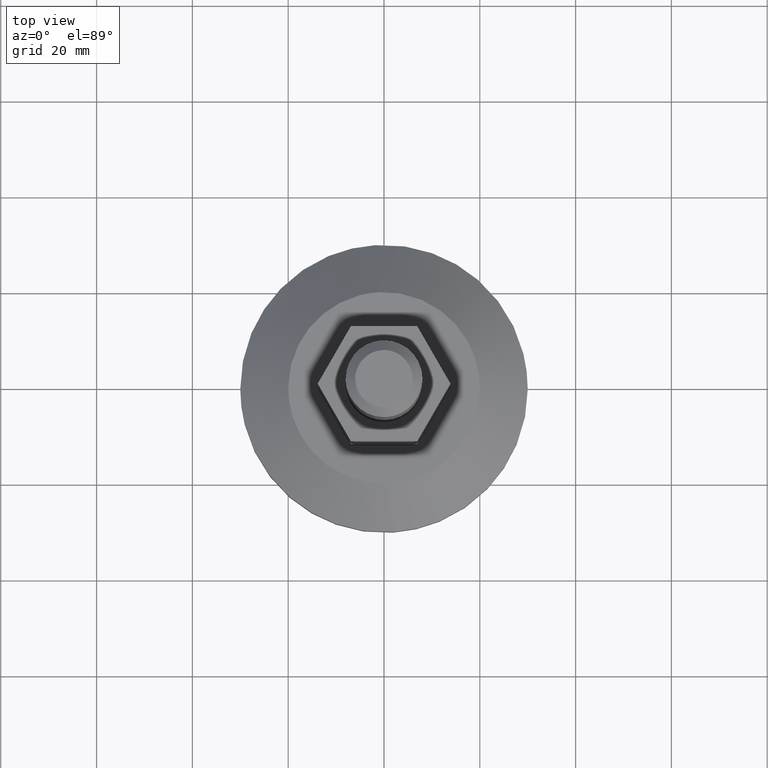
[diagram: clean part render]
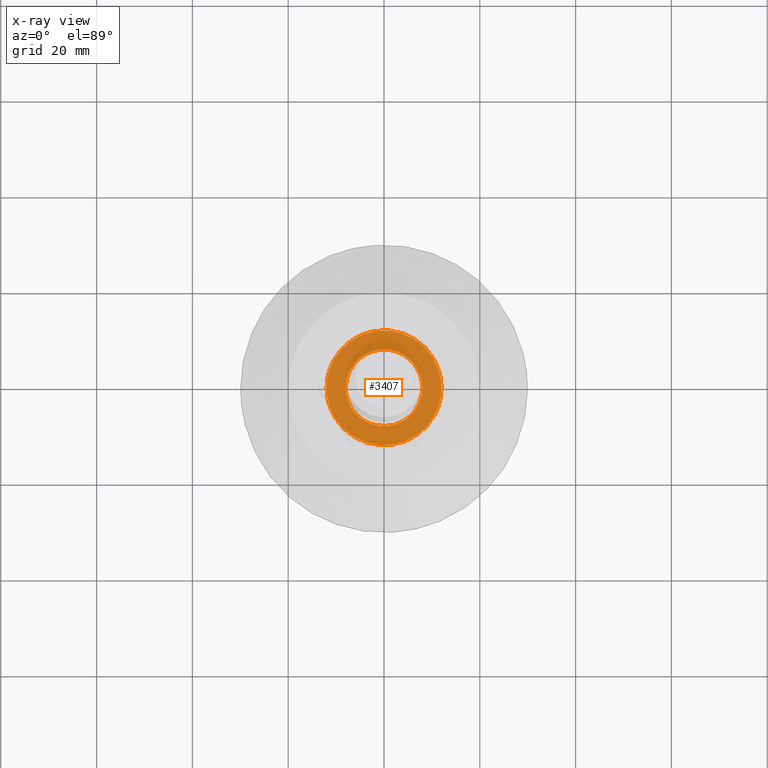
[diagram: x-ray — body ghosted, one internal face saturated and labeled with its STEP entity id]
A machine part, top view, then the same camera in x-ray: the body is ghosted and one INTERNAL B-rep face — a face not visible from any outside direction — is saturated and labeled: STEP entity #3407.
In plain terms, the highlighted face is a freeform B-spline surface patch.
Its self-contained STEP definition (entity closure, byte-faithful):
#3145=CARTESIAN_POINT('',(-11.993593654587141,0.0,17.0));
#3146=VERTEX_POINT('',#3145);
#3147=CARTESIAN_POINT('',(-10.636228768080279,5.542285299832208,17.000000000007748));
#3148=VERTEX_POINT('',#3147);
#3149=CARTESIAN_POINT('',(-11.993593654587141,0.0,17.0));
#3150=CARTESIAN_POINT('',(-11.993593654593083,2.937359231658289,17.000000000003880));
#3151=CARTESIAN_POINT('',(-10.636228768080276,5.542285299832209,17.000000000007748));
#3159=(BOUNDED_CURVE()B_SPLINE_CURVE(2,(#3149,#3150,#3151),.UNSPECIFIED.,.F.,.U.)B_SPLINE_CURVE_WITH_KNOTS((3,3),(0.500000000000000,0.578613981802271),.UNSPECIFIED.)CURVE()GEOMETRIC_REPRESENTATION_ITEM()RATIONAL_B_SPLINE_CURVE((1.0,0.907897991304763,0.873720027693685))REPRESENTATION_ITEM(''));
#3160=EDGE_CURVE('',#3146,#3148,#3159,.T.);
#3162=CARTESIAN_POINT('',(10.636228768080279,-5.542285299832206,17.000000000007748));
#3163=VERTEX_POINT('',#3162);
#3164=CARTESIAN_POINT('',(10.636228768080279,-5.542285299832206,17.000000000007748));
#3165=CARTESIAN_POINT('',(10.194722511241030,-6.390105943887753,17.000000000007699));
#3166=CARTESIAN_POINT('',(9.272762644634474,-7.737226629220758,17.000000000007400));
#3167=CARTESIAN_POINT('',(7.473253849906319,-9.475886156291548,17.000000000007109));
#3168=CARTESIAN_POINT('',(5.755085969863216,-10.591453163964800,17.000000000006469));
#3169=CARTESIAN_POINT('',(3.879149589840315,-11.394034289699910,17.000000000006210));
#3170=CARTESIAN_POINT('',(2.065029211498472,-11.874375301179089,17.000000000005372));
#3171=CARTESIAN_POINT('',(0.277842485635818,-12.030686909236939,17.000000000004949));
#3172=CARTESIAN_POINT('',(-1.509106902916755,-11.935791487184860,17.000000000004320));
#3173=CARTESIAN_POINT('',(-3.147789623515974,-11.623690810468119,17.000000000003780));
#3174=CARTESIAN_POINT('',(-4.677611438959060,-11.075354348443350,17.000000000003240));
#3175=CARTESIAN_POINT('',(-6.389475945877666,-10.219539917387330,17.000000000002618));
#3176=CARTESIAN_POINT('',(-7.945230817021175,-9.085199359660708,17.000000000002021));
#3177=CARTESIAN_POINT('',(-9.334574819232081,-7.588882110131880,17.000000000001471));
#3178=CARTESIAN_POINT('',(-10.317310250948610,-6.192820777633813,17.000000000000981));
#3179=CARTESIAN_POINT('',(-11.019908264660931,-4.819758143995396,17.000000000000679));
#3180=CARTESIAN_POINT('',(-11.761937881596900,-2.742665517208116,17.000000000000529));
#3181=CARTESIAN_POINT('',(-11.994117133447210,-1.163723419241393,17.000000000000249));
#3182=CARTESIAN_POINT('',(-11.993593654587141,0.0,17.0));
#3183=B_SPLINE_CURVE_WITH_KNOTS('',3,(#3164,#3165,#3166,#3167,#3168,#3169,#3170,#3171,#3172,#3173,#3174,#3175,#3176,#3177,#3178,#3179,#3180,#3181,#3182),.UNSPECIFIED.,.F.,.U.,(4,1,1,1,1,1,1,1,1,1,1,1,1,1,1,1,4),(0.000000125357563,2.867617186952348,4.862495208319736,7.480744819523032,8.976932363072077,10.971774188875180,13.091259523285210,14.338034657543000,16.332921408204228,18.078444425954370,19.200555202019238,22.068177801914711,23.813685087827480,25.309863000270301,27.180065850782089,28.426859241106591,31.917814500812518),.UNSPECIFIED.);
#3184=EDGE_CURVE('',#3163,#3146,#3183,.T.);
#3221=CARTESIAN_POINT('',(11.993593654587141,0.0,17.0));
#3222=VERTEX_POINT('',#3221);
#3223=CARTESIAN_POINT('',(-10.636228768080279,5.542285299832208,17.000000000007748));
#3224=CARTESIAN_POINT('',(-10.271420289272180,6.242595311110907,17.000000000007692));
#3225=CARTESIAN_POINT('',(-9.379934617229800,7.605708570843317,17.000000000007571));
#3226=CARTESIAN_POINT('',(-7.760738625139015,9.236555621054350,17.000000000006949));
#3227=CARTESIAN_POINT('',(-6.248110989847127,10.275351582391901,17.000000000007010));
#3228=CARTESIAN_POINT('',(-4.807024617786528,11.020284975110449,17.000000000006111));
#3229=CARTESIAN_POINT('',(-3.206015797335124,11.618515195588410,17.000000000005869));
#3230=CARTESIAN_POINT('',(-1.237002490327198,11.989084313516100,17.000000000005620));
#3231=CARTESIAN_POINT('',(0.555280847702997,12.015009104085070,17.000000000004441));
#3232=CARTESIAN_POINT('',(2.332847045464026,11.808942624655790,17.000000000004139));
#3233=CARTESIAN_POINT('',(3.905633812236696,11.388917926212860,17.000000000003510));
#3234=CARTESIAN_POINT('',(5.584181077250881,10.655899190279330,17.000000000002888));
#3235=CARTESIAN_POINT('',(7.115326862333514,9.723861731951610,17.000000000002370));
#3236=CARTESIAN_POINT('',(8.409012368669863,8.604695383396367,17.000000000001819));
#3237=CARTESIAN_POINT('',(9.536965886224113,7.325027184929705,17.000000000001371));
#3238=CARTESIAN_POINT('',(10.569282040761170,5.808914944792065,17.000000000000931));
#3239=CARTESIAN_POINT('',(11.362573645324590,4.012410770089780,17.000000000000469));
#3240=CARTESIAN_POINT('',(11.876524413631790,1.994807695130304,17.000000000000298));
#3241=CARTESIAN_POINT('',(11.993686607032039,0.748069291947581,16.999999999999972));
#3242=CARTESIAN_POINT('',(11.993593654587141,0.0,17.0));
#3243=B_SPLINE_CURVE_WITH_KNOTS('',3,(#3223,#3224,#3225,#3226,#3227,#3228,#3229,#3230,#3231,#3232,#3233,#3234,#3235,#3236,#3237,#3238,#3239,#3240,#3241,#3242),.UNSPECIFIED.,.F.,.U.,(4,1,1,1,1,1,1,1,1,1,1,1,1,1,1,1,1,4),(0.000000125323801,2.368895523583472,4.862495208289968,6.857352172815158,7.854821382354423,9.725015972329533,11.969191168038410,13.839341692737980,15.086140898107489,17.330334692506430,18.701828911055760,20.572011093718341,22.691573970067040,23.813685087817792,25.683889541050799,28.177451364487389,29.673619461945830,31.917814500812650),.UNSPECIFIED.);
#3244=EDGE_CURVE('',#3148,#3222,#3243,.T.);
#3252=CARTESIAN_POINT('',(11.993593654587141,0.0,17.0));
#3253=CARTESIAN_POINT('',(11.993593654593083,-2.937359231658288,17.000000000003880));
#3254=CARTESIAN_POINT('',(10.636228768080276,-5.542285299832206,17.000000000007748));
#3262=(BOUNDED_CURVE()B_SPLINE_CURVE(2,(#3252,#3253,#3254),.UNSPECIFIED.,.F.,.U.)B_SPLINE_CURVE_WITH_KNOTS((3,3),(0.0,0.078613981802271),.UNSPECIFIED.)CURVE()GEOMETRIC_REPRESENTATION_ITEM()RATIONAL_B_SPLINE_CURVE((1.0,0.907897991304763,0.873720027693685))REPRESENTATION_ITEM(''));
#3263=EDGE_CURVE('',#3222,#3163,#3262,.T.);
#3287=CARTESIAN_POINT('',(0.488388316454029,-7.985078387364220,17.0));
#3288=VERTEX_POINT('',#3287);
#3294=CARTESIAN_POINT('',(-8.0,0.0,17.0));
#3295=VERTEX_POINT('',#3294);
#3296=CARTESIAN_POINT('',(0.488388316454031,-7.985078387364222,17.000000000000004));
#3297=CARTESIAN_POINT('',(0.244422106476545,-8.0,17.0));
#3298=CARTESIAN_POINT('',(0.0,-8.0,17.0));
#3299=CARTESIAN_POINT('',(-8.0,-8.0,17.000000000000004));
#3300=CARTESIAN_POINT('',(-8.0,0.0,17.0));
#3308=(BOUNDED_CURVE()B_SPLINE_CURVE(2,(#3296,#3297,#3298,#3299,#3300),.UNSPECIFIED.,.F.,.U.)B_SPLINE_CURVE_WITH_KNOTS((3,2,3),(0.239332962238183,0.250000000000000,0.500000000000000),.UNSPECIFIED.)CURVE()GEOMETRIC_REPRESENTATION_ITEM()RATIONAL_B_SPLINE_CURVE((0.976072041665089,0.987502787898947,1.0,0.707106781186548,1.0))REPRESENTATION_ITEM(''));
#3309=EDGE_CURVE('',#3288,#3295,#3308,.T.);
#3311=CARTESIAN_POINT('',(-0.488388316454029,7.985078387364220,17.0));
#3312=VERTEX_POINT('',#3311);
#3313=CARTESIAN_POINT('',(-8.0,0.0,17.0));
#3314=CARTESIAN_POINT('',(-8.0,7.525648535080155,17.000000000000004));
#3315=CARTESIAN_POINT('',(-0.488388316454030,7.985078387364221,17.000000000000004));
#3323=(BOUNDED_CURVE()B_SPLINE_CURVE(2,(#3313,#3314,#3315),.UNSPECIFIED.,.F.,.U.)B_SPLINE_CURVE_WITH_KNOTS((3,3),(0.500000000000000,0.739332962238183),.UNSPECIFIED.)CURVE()GEOMETRIC_REPRESENTATION_ITEM()RATIONAL_B_SPLINE_CURVE((1.0,0.719603993287601,0.976072041665089))REPRESENTATION_ITEM(''));
#3324=EDGE_CURVE('',#3295,#3312,#3323,.T.);
#3356=CARTESIAN_POINT('',(8.0,0.0,17.0));
#3357=VERTEX_POINT('',#3356);
#3358=CARTESIAN_POINT('',(-0.488388316454030,7.985078387364221,17.000000000000004));
#3359=CARTESIAN_POINT('',(-0.244422106476544,8.0,17.0));
#3360=CARTESIAN_POINT('',(0.0,8.0,17.0));
#3361=CARTESIAN_POINT('',(8.0,8.0,17.000000000000004));
#3362=CARTESIAN_POINT('',(8.0,0.0,17.0));
#3370=(BOUNDED_CURVE()B_SPLINE_CURVE(2,(#3358,#3359,#3360,#3361,#3362),.UNSPECIFIED.,.F.,.U.)B_SPLINE_CURVE_WITH_KNOTS((3,2,3),(0.739332962238183,0.750000000000000,1.0),.UNSPECIFIED.)CURVE()GEOMETRIC_REPRESENTATION_ITEM()RATIONAL_B_SPLINE_CURVE((0.976072041665089,0.987502787898947,1.0,0.707106781186548,1.0))REPRESENTATION_ITEM(''));
#3371=EDGE_CURVE('',#3312,#3357,#3370,.T.);
#3373=CARTESIAN_POINT('',(8.0,0.0,17.0));
#3374=CARTESIAN_POINT('',(8.0,-7.525648535080154,17.000000000000004));
#3375=CARTESIAN_POINT('',(0.488388316454031,-7.985078387364222,17.000000000000004));
#3383=(BOUNDED_CURVE()B_SPLINE_CURVE(2,(#3373,#3374,#3375),.UNSPECIFIED.,.F.,.U.)B_SPLINE_CURVE_WITH_KNOTS((3,3),(0.0,0.239332962238183),.UNSPECIFIED.)CURVE()GEOMETRIC_REPRESENTATION_ITEM()RATIONAL_B_SPLINE_CURVE((1.0,0.719603993287601,0.976072041665089))REPRESENTATION_ITEM(''));
#3384=EDGE_CURVE('',#3357,#3288,#3383,.T.);
#3390=CARTESIAN_POINT('',(-13.191753614188571,-13.187317503021269,17.0));
#3391=CARTESIAN_POINT('',(13.191754257575070,-13.187317503021269,17.0));
#3392=CARTESIAN_POINT('',(-13.191753614188571,13.187317717483440,17.0));
#3393=CARTESIAN_POINT('',(13.191754257575070,13.187317717483440,17.0));
#3394=B_SPLINE_SURFACE_WITH_KNOTS('',1,1,((#3390,#3392),(#3391,#3393)),.UNSPECIFIED.,.F.,.F.,.U.,(2,2),(2,2),(0.0,26.383507871763651),(0.0,26.374635220504711),.UNSPECIFIED.);
#3395=ORIENTED_EDGE('',*,*,#3263,.T.);
#3396=ORIENTED_EDGE('',*,*,#3184,.T.);
#3397=ORIENTED_EDGE('',*,*,#3160,.T.);
#3398=ORIENTED_EDGE('',*,*,#3244,.T.);
#3399=EDGE_LOOP('',(#3395,#3396,#3397,#3398));
#3400=FACE_OUTER_BOUND('',#3399,.T.);
#3401=ORIENTED_EDGE('',*,*,#3324,.F.);
#3402=ORIENTED_EDGE('',*,*,#3309,.F.);
#3403=ORIENTED_EDGE('',*,*,#3384,.F.);
#3404=ORIENTED_EDGE('',*,*,#3371,.F.);
#3405=EDGE_LOOP('',(#3401,#3402,#3403,#3404));
#3406=FACE_BOUND('',#3405,.T.);
#3407=ADVANCED_FACE('',(#3400,#3406),#3394,.F.);